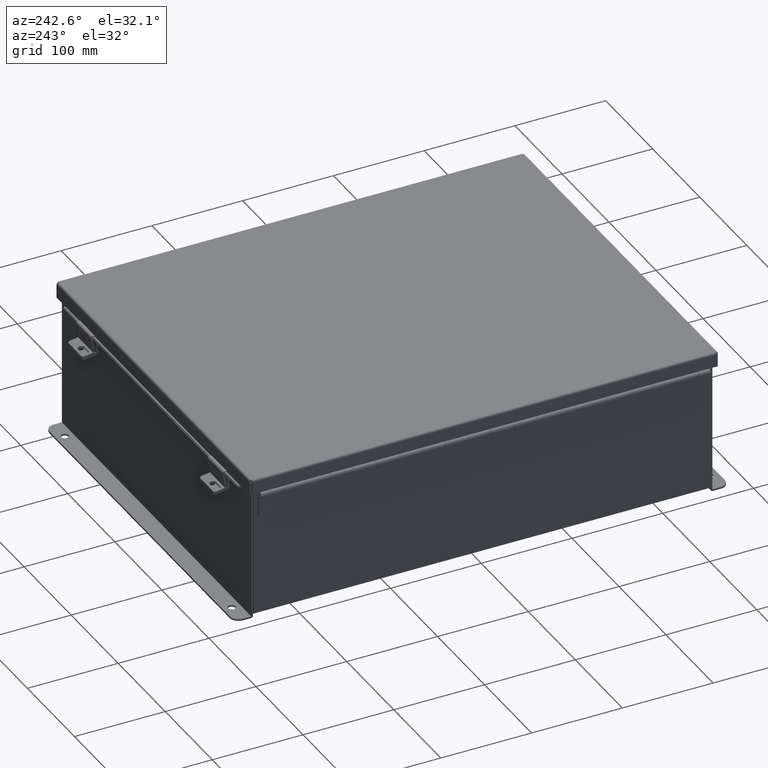
[diagram: clean part render]
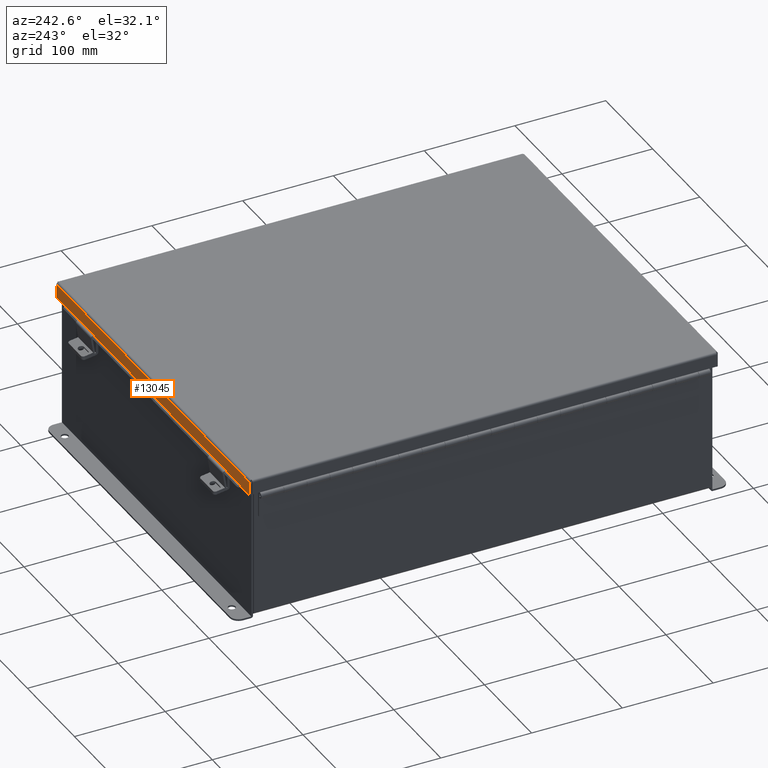
[diagram: same view with one face highlighted and labeled with its STEP entity id]
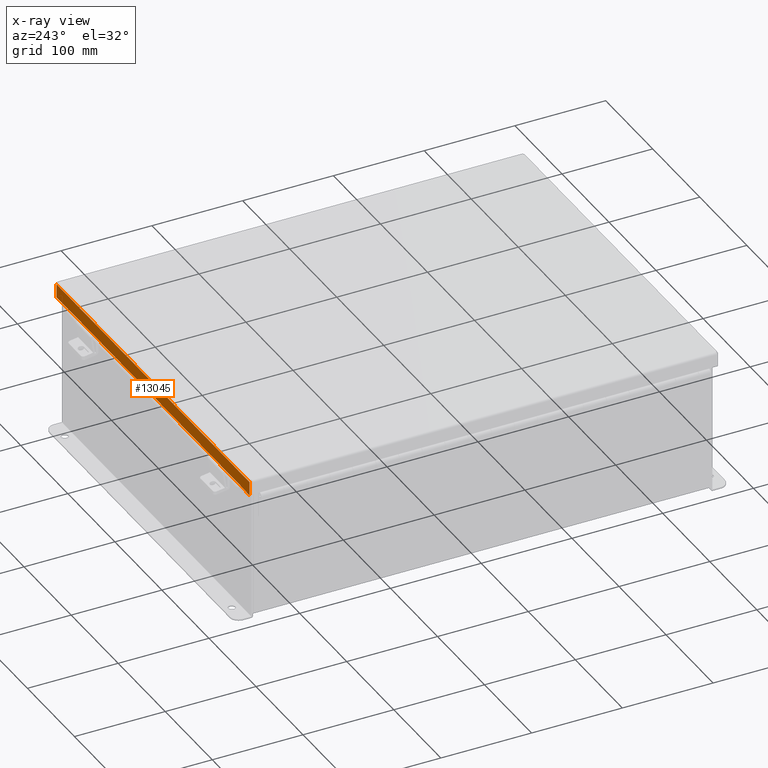
[diagram: x-ray of the same camera — body ghosted, the highlighted face saturated]
A machine part, auxiliary view. The second image highlights one B-rep face of the part: STEP entity #13045.
The next image is the same camera in x-ray: the body ghosted, the highlighted face saturated — about 0% of this face is hidden behind the body in this view.
In plain terms, the highlighted planar face has unit normal (-0, -1, -0).
Its self-contained STEP definition (entity closure, byte-faithful):
#38 = CARTESIAN_POINT ( 'NONE',  ( -7.324478932188123200, 10.15624999999998600, 0.5967115427318782100 ) ) ;
#224 = LINE ( 'NONE', #15356, #13957 ) ;
#845 = DIRECTION ( 'NONE',  ( -1.000000000000000000, -2.258600338820529900E-033, -0.0000000000000000000 ) ) ;
#998 = CARTESIAN_POINT ( 'NONE',  ( 7.324478932188133800, 10.15624999999998400, 0.5967115427318793200 ) ) ;
#1877 = LINE ( 'NONE', #16436, #6476 ) ;
#2040 = VECTOR ( 'NONE', #6197, 39.37007874015748100 ) ;
#2091 = CARTESIAN_POINT ( 'NONE',  ( -8.074478932188132100, 10.15624999999998400, 0.6122999999999994000 ) ) ;
#2110 = EDGE_CURVE ( 'NONE', #2957, #19894, #11307, .T. ) ;
#2503 = VERTEX_POINT ( 'NONE', #2091 ) ;
#2533 = CARTESIAN_POINT ( 'NONE',  ( 7.324478932188133800, 10.15624999999998400, 0.6123000000000015100 ) ) ;
#2758 = CARTESIAN_POINT ( 'NONE',  ( 8.074478932188135600, 10.15624999999998200, -1.092739197465705300E-015 ) ) ;
#2917 = EDGE_CURVE ( 'NONE', #4888, #7287, #1877, .T. ) ;
#2957 = VERTEX_POINT ( 'NONE', #8466 ) ;
#4888 = VERTEX_POINT ( 'NONE', #10802 ) ;
#5026 = DIRECTION ( 'NONE',  ( 1.000000000000000000, 1.714005116931365200E-033, 4.186740220174599200E-018 ) ) ;
#5216 = EDGE_CURVE ( 'NONE', #2503, #19894, #7189, .T. ) ;
#5320 = CARTESIAN_POINT ( 'NONE',  ( -7.324478932188129400, 10.15624999999998400, 0.6123000000000005100 ) ) ;
#5550 = ORIENTED_EDGE ( 'NONE', *, *, #2110, .F. ) ;
#5895 = ORIENTED_EDGE ( 'NONE', *, *, #22253, .F. ) ;
#6018 = DIRECTION ( 'NONE',  ( -2.477048074762977700E-032, -1.000000000000000000, 3.569293475308526100E-015 ) ) ;
#6196 = ORIENTED_EDGE ( 'NONE', *, *, #20131, .T. ) ;
#6197 = DIRECTION ( 'NONE',  ( 1.000000000000000000, 1.714005116931365200E-033, 4.186740220174599200E-018 ) ) ;
#6476 = VECTOR ( 'NONE', #16885, 39.37007874015748100 ) ;
#6798 = VECTOR ( 'NONE', #8808, 39.37007874015748100 ) ;
#7189 = LINE ( 'NONE', #11269, #2040 ) ;
#7287 = VERTEX_POINT ( 'NONE', #11173 ) ;
#7667 = PLANE ( 'NONE',  #11926 ) ;
#7758 = VERTEX_POINT ( 'NONE', #998 ) ;
#8184 = LINE ( 'NONE', #12720, #21506 ) ;
#8466 = CARTESIAN_POINT ( 'NONE',  ( -7.324478932188123200, 10.15624999999998400, 0.5967115427318782100 ) ) ;
#8808 = DIRECTION ( 'NONE',  ( -3.504962610060359200E-013, 0.0000000000000000000, 1.000000000000000000 ) ) ;
#9482 = ORIENTED_EDGE ( 'NONE', *, *, #5216, .T. ) ;
#9595 = DIRECTION ( 'NONE',  ( -0.0000000000000000000, 3.569293475308526100E-015, 1.000000000000000000 ) ) ;
#10802 = CARTESIAN_POINT ( 'NONE',  ( -8.074478932188132100, 10.15624999999998200, 0.01300000000000010700 ) ) ;
#10828 = LINE ( 'NONE', #17734, #15980 ) ;
#11005 = ORIENTED_EDGE ( 'NONE', *, *, #11268, .F. ) ;
#11173 = CARTESIAN_POINT ( 'NONE',  ( 8.074478932188135600, 10.15624999999998200, 0.01299999999999901400 ) ) ;
#11268 = EDGE_CURVE ( 'NONE', #7287, #12940, #17556, .T. ) ;
#11269 = CARTESIAN_POINT ( 'NONE',  ( -2.134256245050205600E-018, 10.15624999999998400, 0.6122999999999994000 ) ) ;
#11307 = LINE ( 'NONE', #38, #6798 ) ;
#11375 = VECTOR ( 'NONE', #845, 39.37007874015748100 ) ;
#11926 = AXIS2_PLACEMENT_3D ( 'NONE', #16332, #6018, #18041 ) ;
#12658 = EDGE_CURVE ( 'NONE', #17969, #12940, #224, .T. ) ;
#12720 = CARTESIAN_POINT ( 'NONE',  ( -8.074478932188132100, 10.15624999999998200, -3.715313271383398100E-014 ) ) ;
#12883 = CARTESIAN_POINT ( 'NONE',  ( 7.324478932188131200, 10.15624999999998600, 0.5967115427318793200 ) ) ;
#12940 = VERTEX_POINT ( 'NONE', #15950 ) ;
#13045 = ADVANCED_FACE ( 'NONE', ( #16117 ), #7667, .F. ) ;
#13652 = ORIENTED_EDGE ( 'NONE', *, *, #2917, .F. ) ;
#13957 = VECTOR ( 'NONE', #5026, 39.37007874015748100 ) ;
#14239 = DIRECTION ( 'NONE',  ( 0.0000000000000000000, 0.0000000000000000000, -1.000000000000000000 ) ) ;
#14411 = ORIENTED_EDGE ( 'NONE', *, *, #12658, .T. ) ;
#14471 = DIRECTION ( 'NONE',  ( 0.0000000000000000000, 3.569293475308526100E-015, 1.000000000000000000 ) ) ;
#15028 = ORIENTED_EDGE ( 'NONE', *, *, #21688, .F. ) ;
#15356 = CARTESIAN_POINT ( 'NONE',  ( -2.134256245050205600E-018, 10.15624999999998400, 0.6122999999999994000 ) ) ;
#15950 = CARTESIAN_POINT ( 'NONE',  ( 8.074478932188135600, 10.15624999999998400, 0.6122999999999994000 ) ) ;
#15980 = VECTOR ( 'NONE', #14239, 39.37007874015748100 ) ;
#16117 = FACE_OUTER_BOUND ( 'NONE', #21955, .T. ) ;
#16332 = CARTESIAN_POINT ( 'NONE',  ( 0.0000000000000000000, 10.15624999999998200, -3.715313271383398100E-014 ) ) ;
#16436 = CARTESIAN_POINT ( 'NONE',  ( 8.156250000000001800, 10.15624999999998200, 0.01300000000000010700 ) ) ;
#16885 = DIRECTION ( 'NONE',  ( 1.000000000000000000, -2.239330294933626500E-032, -0.0000000000000000000 ) ) ;
#17556 = LINE ( 'NONE', #2758, #21657 ) ;
#17734 = CARTESIAN_POINT ( 'NONE',  ( 7.324478932188133800, 10.15624999999998600, 0.6122999999999994000 ) ) ;
#17969 = VERTEX_POINT ( 'NONE', #2533 ) ;
#18041 = DIRECTION ( 'NONE',  ( 0.0000000000000000000, -3.569293475308526100E-015, -1.000000000000000000 ) ) ;
#19894 = VERTEX_POINT ( 'NONE', #5320 ) ;
#20131 = EDGE_CURVE ( 'NONE', #4888, #2503, #8184, .T. ) ;
#21506 = VECTOR ( 'NONE', #14471, 39.37007874015748100 ) ;
#21657 = VECTOR ( 'NONE', #9595, 39.37007874015748100 ) ;
#21688 = EDGE_CURVE ( 'NONE', #7758, #2957, #21737, .T. ) ;
#21737 = LINE ( 'NONE', #12883, #11375 ) ;
#21955 = EDGE_LOOP ( 'NONE', ( #5895, #14411, #11005, #13652, #6196, #9482, #5550, #15028 ) ) ;
#22253 = EDGE_CURVE ( 'NONE', #17969, #7758, #10828, .T. ) ;